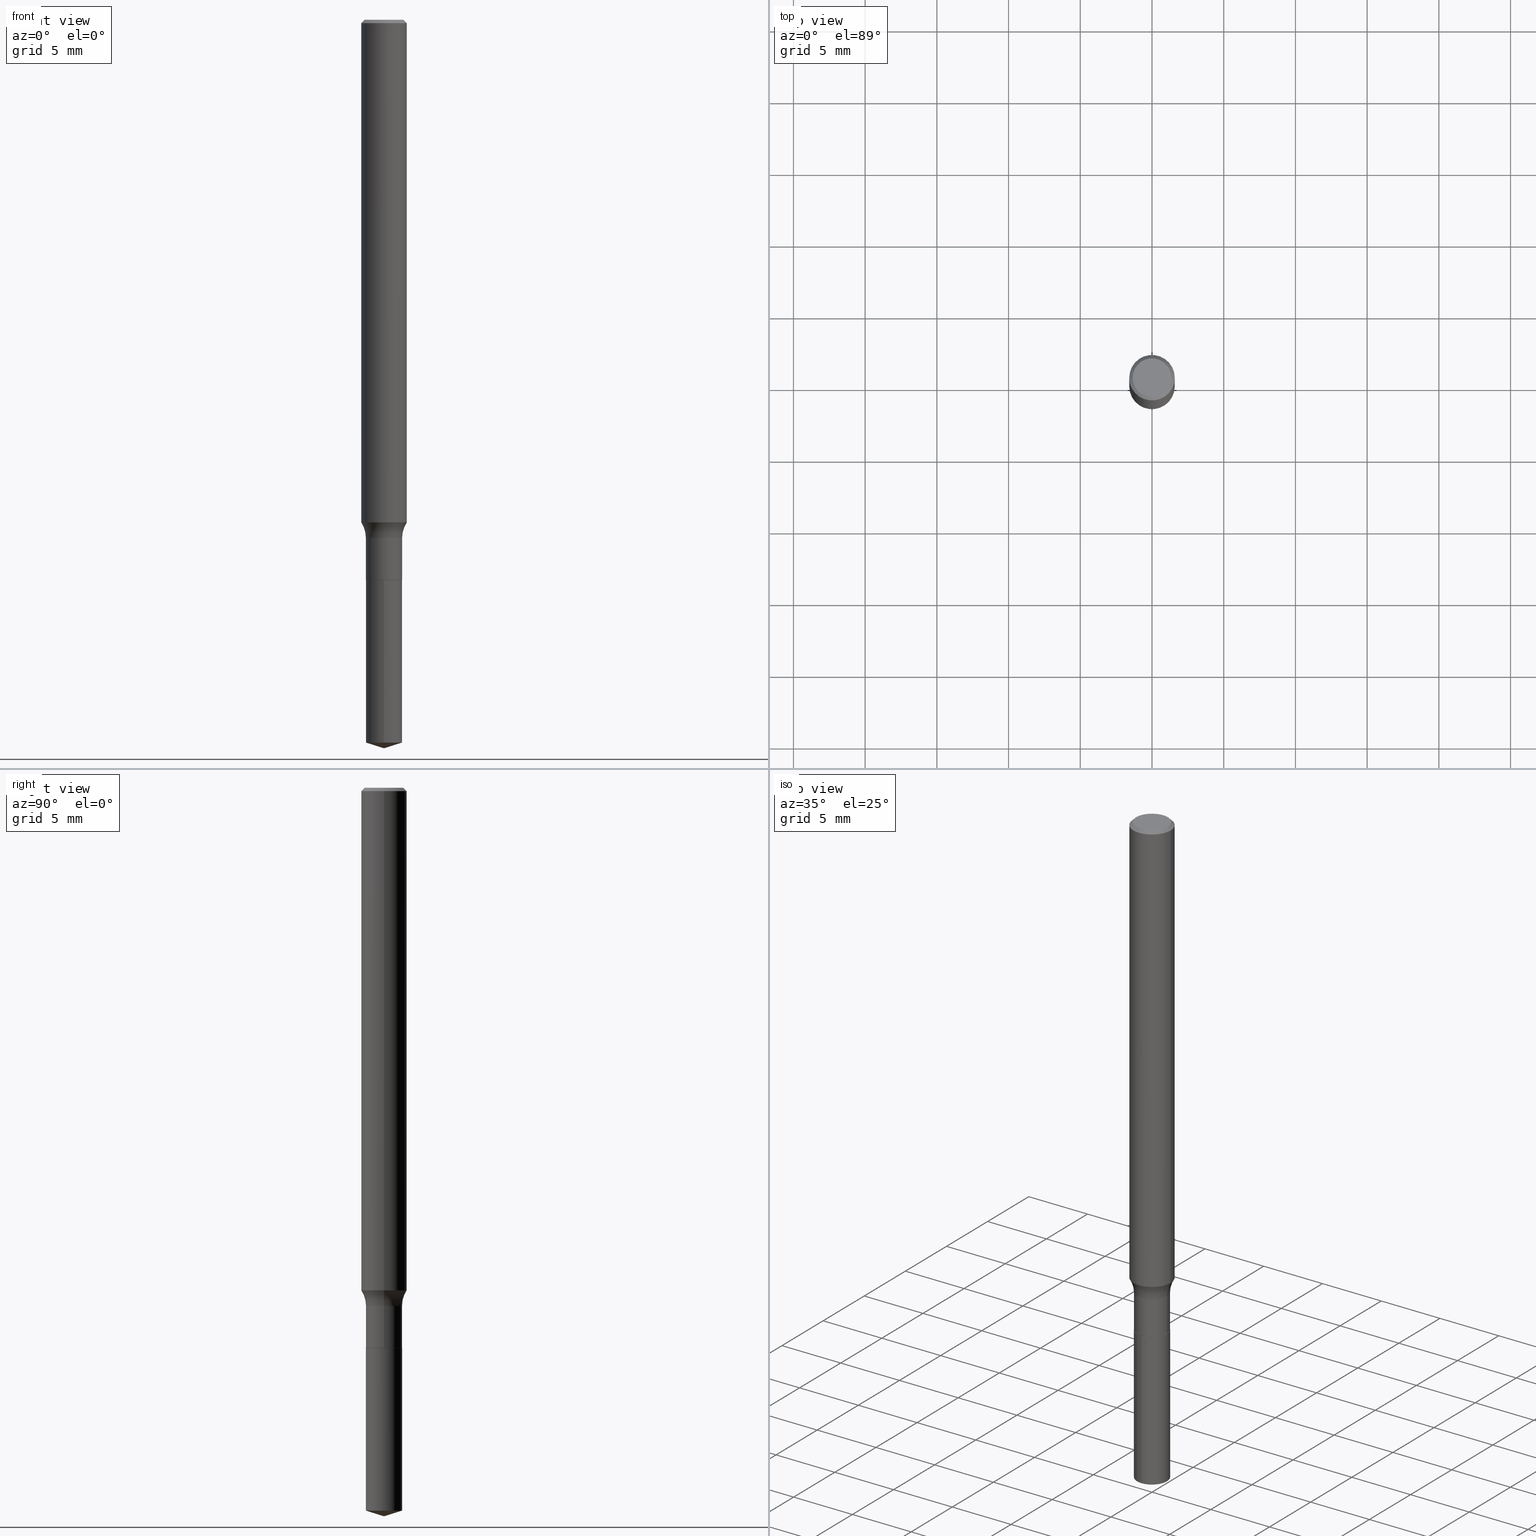
[diagram: canonical four-view strip — front | top / right | iso, engineering-drawing reading convention]
A machine part, canonical four-view strip (front | top / right | iso — engineering-drawing reading convention). The complete STEP part file that produces these views, byte-faithful:
ISO-10303-21;
HEADER;
FILE_DESCRIPTION (( 'STEP AP203' ),
    '1' );
FILE_NAME ('51753.STEP',
    '2024-04-19T13:14:13',
    ( '' ),
    ( '' ),
    'SwSTEP 2.0',
    'SolidWorks 2023',
    '' );
FILE_SCHEMA (( 'CONFIG_CONTROL_DESIGN' ));
ENDSEC;

DATA;
#1 = DIRECTION ( 'NONE',  ( -2.445468806185136597E-29, 3.491481338843145583E-15, 1.000000000000000000 ) ) ;
#2 = ORIENTED_EDGE ( 'NONE', *, *, #179, .F. ) ;
#3 = CALENDAR_DATE ( 2024, 19, 4 ) ;
#4 = EDGE_CURVE ( 'NONE', #243, #82, #340, .T. ) ;
#5 = DIRECTION ( 'NONE',  ( -2.445468806185136597E-29, 3.491481338843145583E-15, 1.000000000000000000 ) ) ;
#6 = EDGE_LOOP ( 'NONE', ( #15, #274, #393, #312 ) ) ;
#7 = VECTOR ( 'NONE', #301, 39.37007874015748143 ) ;
#8 = TOROIDAL_SURFACE ( 'NONE', #160, 0.1277500000000000024, 0.07799999999999999989 ) ;
#9 = CYLINDRICAL_SURFACE ( 'NONE', #212, 0.06250000000000008327 ) ;
#10 = ORIENTED_EDGE ( 'NONE', *, *, #202, .F. ) ;
#11 = CARTESIAN_POINT ( 'NONE',  ( 0.000000000000000000, 0.000000000000000000, 0.000000000000000000 ) ) ;
#12 = ORIENTED_EDGE ( 'NONE', *, *, #407, .F. ) ;
#13 = ORIENTED_EDGE ( 'NONE', *, *, #60, .F. ) ;
#14 = LOCAL_TIME ( 9, 14, 13.00000000000000000, #411 ) ;
#15 = ORIENTED_EDGE ( 'NONE', *, *, #380, .T. ) ;
#16 = ORIENTED_EDGE ( 'NONE', *, *, #444, .T. ) ;
#17 = FACE_OUTER_BOUND ( 'NONE', #88, .T. ) ;
#18 = DESIGN_CONTEXT ( 'detailed design', #124, 'design' ) ;
#19 = DIRECTION ( 'NONE',  ( 1.000000000000000000, -6.982962677686268288E-15, 0.000000000000000000 ) ) ;
#20 = AXIS2_PLACEMENT_3D ( 'NONE', #327, #139, #136 ) ;
#21 = CC_DESIGN_APPROVAL ( #95, ( #205 ) ) ;
#22 = ORIENTED_EDGE ( 'NONE', *, *, #396, .F. ) ;
#23 = DIRECTION ( 'NONE',  ( 1.000000000000000000, -6.982962677686266711E-15, 0.000000000000000000 ) ) ;
#24 = CARTESIAN_POINT ( 'NONE',  ( 3.534950110406982770E-16, 0.04974999999999305672, -1.984313885253270904 ) ) ;
#25 = PERSON_AND_ORGANIZATION ( #127, #352 ) ;
#26 = CARTESIAN_POINT ( 'NONE',  ( 0.1277500000000000024, -5.859054834712678258E-15, -1.422599999999999643 ) ) ;
#27 = PERSON_AND_ORGANIZATION_ROLE ( 'design_owner' ) ;
#28 = AXIS2_PLACEMENT_3D ( 'NONE', #172, #368, #360 ) ;
#29 = DIRECTION ( 'NONE',  ( 6.982962677686265922E-15, 1.000000000000000000, -3.494823742748583063E-15 ) ) ;
#30 = CIRCLE ( 'NONE', #374, 0.04975000000000002337 ) ;
#31 = CIRCLE ( 'NONE', #272, 0.04975000000000000255 ) ;
#32 = SECURITY_CLASSIFICATION_LEVEL ( 'unclassified' ) ;
#33 = LINE ( 'NONE', #145, #7 ) ;
#34 = PERSON_AND_ORGANIZATION ( #127, #352 ) ;
#35 = EDGE_CURVE ( 'NONE', #484, #93, #321, .T. ) ;
#36 = DIRECTION ( 'NONE',  ( 1.000000000000000000, -6.982962677686259611E-15, 0.000000000000000000 ) ) ;
#37 = DATE_AND_TIME ( #375, #474 ) ;
#38 = CARTESIAN_POINT ( 'NONE',  ( 0.000000000000000000, 0.000000000000000000, 0.000000000000000000 ) ) ;
#39 = AXIS2_PLACEMENT_3D ( 'NONE', #452, #339, #489 ) ;
#40 = COORDINATED_UNIVERSAL_TIME_OFFSET ( 5, 0, .BEHIND. ) ;
#41 = PLANE ( 'NONE',  #118 ) ;
#42 = ORIENTED_EDGE ( 'NONE', *, *, #285, .T. ) ;
#43 = EDGE_CURVE ( 'NONE', #47, #425, #228, .T. ) ;
#44 = DIRECTION ( 'NONE',  ( 6.776566513254251038E-15, 0.9537169507482278208, 0.3007057995042701215 ) ) ;
#45 = ORIENTED_EDGE ( 'NONE', *, *, #234, .F. ) ;
#46 = DIRECTION ( 'NONE',  ( -2.443134818012594295E-29, 3.494823742748583063E-15, 1.000000000000000000 ) ) ;
#47 = VERTEX_POINT ( 'NONE', #173 ) ;
#48 = AXIS2_PLACEMENT_3D ( 'NONE', #279, #244, #49 ) ;
#49 = DIRECTION ( 'NONE',  ( -6.982962677686266711E-15, -1.000000000000000000, 5.491151746058819933E-15 ) ) ;
#50 = ORIENTED_EDGE ( 'NONE', *, *, #234, .T. ) ;
#51 = EDGE_CURVE ( 'NONE', #129, #240, #477, .T. ) ;
#52 = VERTEX_POINT ( 'NONE', #214 ) ;
#53 = VERTEX_POINT ( 'NONE', #24 ) ;
#54 = ADVANCED_FACE ( 'NONE', ( #17 ), #72, .T. ) ;
#55 = AXIS2_PLACEMENT_3D ( 'NONE', #296, #107, #338 ) ;
#56 = VECTOR ( 'NONE', #223, 39.37007874015748143 ) ;
#57 = CARTESIAN_POINT ( 'NONE',  ( -0.06250000000000000000, 4.037025298037369491E-16, -0.009375000000000072511 ) ) ;
#58 = CARTESIAN_POINT ( 'NONE',  ( 0.000000000000000000, 0.000000000000000000, 0.000000000000000000 ) ) ;
#59 = DIRECTION ( 'NONE',  ( 0.7071067811865455743, -7.319954787623248157E-15, -0.7071067811865493491 ) ) ;
#60 = EDGE_CURVE ( 'NONE', #93, #240, #280, .T. ) ;
#61 = DIRECTION ( 'NONE',  ( -1.000000000000000000, 6.982962677686266711E-15, 0.000000000000000000 ) ) ;
#62 = CARTESIAN_POINT ( 'NONE',  ( 0.04975000000000002337, -5.712063470347386869E-15, -1.536500000000000421 ) ) ;
#63 = CLOSED_SHELL ( 'NONE', ( #429, #81, #283, #133, #164, #149, #108, #423, #337, #241, #320, #185 ) ) ;
#64 = AXIS2_PLACEMENT_3D ( 'NONE', #479, #151, #294 ) ;
#65 = EDGE_CURVE ( 'NONE', #282, #126, #181, .T. ) ;
#66 = DIRECTION ( 'NONE',  ( -2.443134818012594295E-29, 3.494823742748583063E-15, 1.000000000000000000 ) ) ;
#67 = APPLICATION_PROTOCOL_DEFINITION ( 'international standard', 'config_control_design', 1994, #73 ) ;
#68 = CARTESIAN_POINT ( 'NONE',  ( -9.129655318212976320E-28, 1.306069757242890747E-13, 37.37007874015748143 ) ) ;
#69 = DATE_AND_TIME ( #408, #413 ) ;
#70 = DIRECTION ( 'NONE',  ( -6.982962677686266711E-15, -1.000000000000000000, 3.491481338843145583E-15 ) ) ;
#71 = VECTOR ( 'NONE', #401, 39.37007874015748854 ) ;
#72 = CONICAL_SURFACE ( 'NONE', #259, 124.8659371009137118, 1.265363707695888573 ) ;
#73 = APPLICATION_CONTEXT ( 'configuration controlled 3d designs of mechanical parts and assemblies' ) ;
#74 = FACE_OUTER_BOUND ( 'NONE', #388, .T. ) ;
#75 = CIRCLE ( 'NONE', #434, 0.04975000000000000255 ) ;
#76 = VECTOR ( 'NONE', #367, 39.37007874015748143 ) ;
#77 = ADVANCED_FACE ( 'NONE', ( #362 ), #132, .T. ) ;
#78 = CYLINDRICAL_SURFACE ( 'NONE', #433, 0.04975000000000000949 ) ;
#79 = CARTESIAN_POINT ( 'NONE',  ( -0.04975000000000000255, -4.812326203844726355E-15, -1.422600000000000087 ) ) ;
#80 = DIRECTION ( 'NONE',  ( -6.982962677686266711E-15, -1.000000000000000000, 5.491151746058819933E-15 ) ) ;
#81 = ADVANCED_FACE ( 'NONE', ( #437 ), #265, .T. ) ;
#82 = VERTEX_POINT ( 'NONE', #219 ) ;
#83 = CARTESIAN_POINT ( 'NONE',  ( 3.758685555106554828E-29, -5.366406817801914963E-15, -1.536999999999999922 ) ) ;
#84 = ORIENTED_EDGE ( 'NONE', *, *, #369, .T. ) ;
#85 = DIRECTION ( 'NONE',  ( -2.445468806185136597E-29, 3.491481338843145583E-15, 1.000000000000000000 ) ) ;
#86 = ORIENTED_EDGE ( 'NONE', *, *, #410, .T. ) ;
#87 = DIRECTION ( 'NONE',  ( -1.000000000000000000, 7.105427357600997914E-15, 0.000000000000000000 ) ) ;
#88 = EDGE_LOOP ( 'NONE', ( #395, #92, #134 ) ) ;
#89 = AXIS2_PLACEMENT_3D ( 'NONE', #257, #404, #61 ) ;
#90 = AXIS2_PLACEMENT_3D ( 'NONE', #125, #128, #87 ) ;
#91 = EDGE_CURVE ( 'NONE', #243, #282, #178, .T. ) ;
#92 = ORIENTED_EDGE ( 'NONE', *, *, #248, .T. ) ;
#93 = VERTEX_POINT ( 'NONE', #409 ) ;
#94 = ORIENTED_EDGE ( 'NONE', *, *, #51, .T. ) ;
#95 = APPROVAL ( #199, 'UNSPECIFIED' ) ;
#96 = FACE_OUTER_BOUND ( 'NONE', #152, .T. ) ;
#97 = AXIS2_PLACEMENT_3D ( 'NONE', #392, #236, #197 ) ;
#98 = VERTEX_POINT ( 'NONE', #336 ) ;
#99 = CARTESIAN_POINT ( 'NONE',  ( 0.06250000000000008327, -4.364351673553922611E-16, 3.047610484872464074E-30 ) ) ;
#100 = CARTESIAN_POINT ( 'NONE',  ( -9.129655318212976320E-28, 1.306069757242890747E-13, 37.37007874015748143 ) ) ;
#101 = CARTESIAN_POINT ( 'NONE',  ( 3.758685555106554828E-29, -5.366406817801914963E-15, -1.536999999999999922 ) ) ;
#102 = DIRECTION ( 'NONE',  ( 1.000000000000000000, -6.982962677686266711E-15, 4.876176775795935793E-29 ) ) ;
#103 = DIRECTION ( 'NONE',  ( -2.445468806185136597E-29, 3.491481338843145583E-15, 1.000000000000000000 ) ) ;
#104 = APPROVAL_ROLE ( '' ) ;
#105 = DIRECTION ( 'NONE',  ( -2.445468806185136597E-29, 3.491481338843145583E-15, 1.000000000000000000 ) ) ;
#106 = LENGTH_MEASURE_WITH_UNIT ( LENGTH_MEASURE( 0.02539999999999999897 ), #174 );
#107 = DIRECTION ( 'NONE',  ( -2.443134818012594295E-29, 3.494823742748583063E-15, 1.000000000000000000 ) ) ;
#108 = ADVANCED_FACE ( 'NONE', ( #416 ), #186, .F. ) ;
#109 = MANIFOLD_SOLID_BREP ( 'Body-Move/Copy2[1]', #220 ) ;
#110 = AXIS2_PLACEMENT_3D ( 'NONE', #26, #70, #195 ) ;
#111 = DIRECTION ( 'NONE',  ( 1.000000000000000000, -6.982962677686268288E-15, 4.883557194083114022E-29 ) ) ;
#112 = CIRCLE ( 'NONE', #459, 0.06250000000000000000 ) ;
#113 = CARTESIAN_POINT ( 'NONE',  ( -0.06250000000000000000, -1.981160345435149449E-15, -0.009375000000000072511 ) ) ;
#114 = ORIENTED_EDGE ( 'NONE', *, *, #317, .T. ) ;
#115 = PERSON_AND_ORGANIZATION_ROLE ( 'classification_officer' ) ;
#116 = LINE ( 'NONE', #166, #204 ) ;
#117 = CARTESIAN_POINT ( 'NONE',  ( -3.474023932148541639E-16, -0.04975000000000537326, -1.536999999999999700 ) ) ;
#118 = AXIS2_PLACEMENT_3D ( 'NONE', #83, #417, #122 ) ;
#119 = ORIENTED_EDGE ( 'NONE', *, *, #35, .T. ) ;
#120 = CC_DESIGN_SECURITY_CLASSIFICATION ( #205, ( #177 ) ) ;
#121 = DATE_AND_TIME ( #456, #450 ) ;
#122 = DIRECTION ( 'NONE',  ( 1.000000000000000000, -6.982962677686265922E-15, 4.876176775795935793E-29 ) ) ;
#123 = ORIENTED_EDGE ( 'NONE', *, *, #490, .T. ) ;
#124 = APPLICATION_CONTEXT ( 'configuration controlled 3d designs of mechanical parts and assemblies' ) ;
#125 = CARTESIAN_POINT ( 'NONE',  ( -0.1277500000000000024, -4.059263007704729389E-15, -1.422599999999999643 ) ) ;
#126 = VERTEX_POINT ( 'NONE', #79 ) ;
#127 = PERSON ( 'UNSPECIFIED', 'UNSPECIFIED', 'UNSPECIFIED', ('UNSPECIFIED'), ('UNSPECIFIED'), ('UNSPECIFIED') ) ;
#128 = DIRECTION ( 'NONE',  ( 7.105427357601001859E-15, 1.000000000000000000, -3.491481338843145583E-15 ) ) ;
#129 = VERTEX_POINT ( 'NONE', #412 ) ;
#130 = VECTOR ( 'NONE', #59, 39.37007874015748854 ) ;
#131 = VECTOR ( 'NONE', #298, 39.37007874015748143 ) ;
#132 = CYLINDRICAL_SURFACE ( 'NONE', #441, 0.04975000000000000255 ) ;
#133 = ADVANCED_FACE ( 'NONE', ( #74 ), #8, .F. ) ;
#134 = ORIENTED_EDGE ( 'NONE', *, *, #410, .F. ) ;
#135 = UNCERTAINTY_MEASURE_WITH_UNIT (LENGTH_MEASURE( 1.000000000000000082E-05 ), #436, 'distance_accuracy_value', 'NONE');
#136 = DIRECTION ( 'NONE',  ( 1.000000000000000000, -6.982962677686266711E-15, 0.000000000000000000 ) ) ;
#137 = VECTOR ( 'NONE', #255, 39.37007874015748143 ) ;
#138 = DIRECTION ( 'NONE',  ( 0.000000000000000000, 0.000000000000000000, 1.000000000000000000 ) ) ;
#139 = DIRECTION ( 'NONE',  ( -2.445468806185136597E-29, 3.491481338843145583E-15, 1.000000000000000000 ) ) ;
#140 = DIRECTION ( 'NONE',  ( -2.445468806185136597E-29, 3.491481338843145583E-15, 1.000000000000000000 ) ) ;
#141 = CARTESIAN_POINT ( 'NONE',  ( -0.04925000000000000211, -5.016464520440065508E-15, -1.536999999999999922 ) ) ;
#142 = ADVANCED_FACE ( 'NONE', ( #235 ), #252, .T. ) ;
#143 = CARTESIAN_POINT ( 'NONE',  ( 0.000000000000000000, 0.000000000000000000, 0.000000000000000000 ) ) ;
#144 = CIRCLE ( 'NONE', #389, 0.05312499999999999861 ) ;
#145 = CARTESIAN_POINT ( 'NONE',  ( 0.04925000000000000211, -5.710317729677963788E-15, -1.536999999999999922 ) ) ;
#146 = CARTESIAN_POINT ( 'NONE',  ( 0.06250000000000016653, -5.254201640374165172E-15, -1.379863159920274418 ) ) ;
#147 = DIRECTION ( 'NONE',  ( 1.000000000000000000, -6.982962677686266711E-15, 4.876176775795935793E-29 ) ) ;
#148 = DIRECTION ( 'NONE',  ( -2.445468806185136597E-29, 3.491481338843145583E-15, 1.000000000000000000 ) ) ;
#149 = ADVANCED_FACE ( 'NONE', ( #414 ), #78, .T. ) ;
#150 = VECTOR ( 'NONE', #284, 39.37007874015748143 ) ;
#151 = DIRECTION ( 'NONE',  ( -2.445468806185136597E-29, 3.491481338843145583E-15, 1.000000000000000000 ) ) ;
#152 = EDGE_LOOP ( 'NONE', ( #432, #198, #249, #359 ) ) ;
#153 = EDGE_CURVE ( 'NONE', #53, #52, #232, .T. ) ;
#154 = APPROVAL_ROLE ( '' ) ;
#155 = DIRECTION ( 'NONE',  ( 1.000000000000000000, -6.982962677686266711E-15, 4.874146000987428094E-29 ) ) ;
#156 = CARTESIAN_POINT ( 'NONE',  ( 4.851533682749310383E-29, -6.929690004446159689E-15, -1.984313885253270460 ) ) ;
#157 = ORIENTED_EDGE ( 'NONE', *, *, #91, .F. ) ;
#158 = SHAPE_DEFINITION_REPRESENTATION ( #196, #226 ) ;
#159 = CARTESIAN_POINT ( 'NONE',  ( 3.758685555106554828E-29, -5.366406817801914963E-15, -1.536999999999999922 ) ) ;
#160 = AXIS2_PLACEMENT_3D ( 'NONE', #261, #440, #445 ) ;
#161 = ORIENTED_EDGE ( 'NONE', *, *, #390, .T. ) ;
#162 = AXIS2_PLACEMENT_3D ( 'NONE', #156, #307, #465 ) ;
#163 = LINE ( 'NONE', #313, #246 ) ;
#164 = ADVANCED_FACE ( 'NONE', ( #332 ), #447, .T. ) ;
#165 = ORIENTED_EDGE ( 'NONE', *, *, #306, .T. ) ;
#166 = CARTESIAN_POINT ( 'NONE',  ( -3.474023932148541639E-16, -0.04975000000000537326, -1.536999999999999700 ) ) ;
#167 = ORIENTED_EDGE ( 'NONE', *, *, #218, .T. ) ;
#168 = EDGE_CURVE ( 'NONE', #425, #258, #449, .T. ) ;
#169 = EDGE_LOOP ( 'NONE', ( #12, #10, #381, #16 ) ) ;
#170 = CC_DESIGN_APPROVAL ( #403, ( #438 ) ) ;
#171 = CC_DESIGN_PERSON_AND_ORGANIZATION_ASSIGNMENT ( #25, #27, ( #455 ) ) ;
#172 = CARTESIAN_POINT ( 'NONE',  ( 3.758685555106554828E-29, -5.366406817801914963E-15, -1.536999999999999922 ) ) ;
#173 = CARTESIAN_POINT ( 'NONE',  ( -0.06250000000000016653, -4.373677263168709308E-15, -1.379863159920274418 ) ) ;
#174 =( LENGTH_UNIT ( ) NAMED_UNIT ( * ) SI_UNIT ( $, .METRE. ) );
#175 = DIRECTION ( 'NONE',  ( -6.982962677686266711E-15, -1.000000000000000000, 5.491151746058819933E-15 ) ) ;
#176 = CIRCLE ( 'NONE', #333, 0.04975000000000000255 ) ;
#177 = PRODUCT_DEFINITION_FORMATION_WITH_SPECIFIED_SOURCE ( 'ANY', '', #455, .NOT_KNOWN. ) ;
#178 = LINE ( 'NONE', #141, #150 ) ;
#179 = EDGE_CURVE ( 'NONE', #282, #435, #289, .T. ) ;
#180 = CARTESIAN_POINT ( 'NONE',  ( 0.000000000000000000, 0.000000000000000000, 0.000000000000000000 ) ) ;
#181 = LINE ( 'NONE', #439, #137 ) ;
#182 = CARTESIAN_POINT ( 'NONE',  ( 3.758685555106554828E-29, -5.366406817801914963E-15, -1.536999999999999922 ) ) ;
#183 = DIRECTION ( 'NONE',  ( -2.445468806185136597E-29, 3.491481338843145583E-15, 1.000000000000000000 ) ) ;
#184 = CALENDAR_DATE ( 2024, 19, 4 ) ;
#185 = ADVANCED_FACE ( 'NONE', ( #373 ), #324, .T. ) ;
#186 = TOROIDAL_SURFACE ( 'NONE', #405, 0.1277500000000000024, 0.07799999999999999989 ) ;
#187 = CARTESIAN_POINT ( 'NONE',  ( 3.534950110406874301E-16, 0.04974999999999463185, -1.537000000000000366 ) ) ;
#188 = DATE_TIME_ROLE ( 'classification_date' ) ;
#189 = DIRECTION ( 'NONE',  ( -6.982962677686266711E-15, -1.000000000000000000, 3.500519750498742297E-15 ) ) ;
#190 = APPROVAL_DATE_TIME ( #121, #481 ) ;
#191 = PLANE ( 'NONE',  #39 ) ;
#192 = PERSON_AND_ORGANIZATION ( #127, #352 ) ;
#193 = AXIS2_PLACEMENT_3D ( 'NONE', #397, #216, #470 ) ;
#194 = CIRCLE ( 'NONE', #55, 0.04975000000000000255 ) ;
#195 = DIRECTION ( 'NONE',  ( 1.000000000000000000, -6.982962677686270655E-15, 0.000000000000000000 ) ) ;
#196 = PRODUCT_DEFINITION_SHAPE ( 'NONE', 'NONE',  #438 ) ;
#197 = DIRECTION ( 'NONE',  ( -1.000000000000000000, 6.982962677686266711E-15, 0.000000000000000000 ) ) ;
#198 = ORIENTED_EDGE ( 'NONE', *, *, #43, .T. ) ;
#199 = APPROVAL_STATUS ( 'not_yet_approved' ) ;
#200 = CARTESIAN_POINT ( 'NONE',  ( -3.474023932148430705E-16, -0.04975000000000692063, -1.984313885253270238 ) ) ;
#201 = ORIENTED_EDGE ( 'NONE', *, *, #471, .T. ) ;
#202 = EDGE_CURVE ( 'NONE', #425, #47, #365, .T. ) ;
#203 = FACE_OUTER_BOUND ( 'NONE', #269, .T. ) ;
#204 = VECTOR ( 'NONE', #268, 39.37007874015748143 ) ;
#205 = SECURITY_CLASSIFICATION ( '', '', #32 ) ;
#206 = ORIENTED_EDGE ( 'NONE', *, *, #60, .T. ) ;
#207 = CARTESIAN_POINT ( 'NONE',  ( 4.886269636025189151E-29, -6.989647485497166126E-15, -2.000000000000000000 ) ) ;
#208 = ORIENTED_EDGE ( 'NONE', *, *, #65, .T. ) ;
#209 = ORIENTED_EDGE ( 'NONE', *, *, #369, .F. ) ;
#210 = ADVANCED_FACE ( 'NONE', ( #227 ), #486, .F. ) ;
#211 = ORIENTED_EDGE ( 'NONE', *, *, #168, .F. ) ;
#212 = AXIS2_PLACEMENT_3D ( 'NONE', #11, #1, #457 ) ;
#213 = APPROVAL_PERSON_ORGANIZATION ( #485, #403, #104 ) ;
#214 = CARTESIAN_POINT ( 'NONE',  ( 3.534950110406984742E-16, 0.04974999999999463185, -1.537000000000000366 ) ) ;
#215 = DATE_TIME_ROLE ( 'creation_date' ) ;
#216 = DIRECTION ( 'NONE',  ( -2.445468806185136597E-29, 3.491481338843145583E-15, 1.000000000000000000 ) ) ;
#217 = LINE ( 'NONE', #256, #76 ) ;
#218 = EDGE_CURVE ( 'NONE', #82, #435, #33, .T. ) ;
#219 = CARTESIAN_POINT ( 'NONE',  ( 0.04925000000000000211, -5.710317729677963788E-15, -1.536999999999999922 ) ) ;
#220 = CLOSED_SHELL ( 'NONE', ( #77, #142, #54, #273, #210 ) ) ;
#221 = CIRCLE ( 'NONE', #48, 0.04975000000000000255 ) ;
#222 = ORIENTED_EDGE ( 'NONE', *, *, #51, .F. ) ;
#223 = DIRECTION ( 'NONE',  ( -2.445468806185136877E-29, 3.491481338843145188E-15, 1.000000000000000000 ) ) ;
#224 = CC_DESIGN_PERSON_AND_ORGANIZATION_ASSIGNMENT ( #299, #341, ( #177 ) ) ;
#225 = PERSON_AND_ORGANIZATION ( #127, #352 ) ;
#226 = ADVANCED_BREP_SHAPE_REPRESENTATION ( '51753', ( #109, #427, #342 ), #391 ) ;
#227 = FACE_OUTER_BOUND ( 'NONE', #237, .T. ) ;
#228 = CIRCLE ( 'NONE', #193, 0.06250000000000016653 ) ;
#229 = AXIS2_PLACEMENT_3D ( 'NONE', #406, #103, #263 ) ;
#230 = VECTOR ( 'NONE', #44, 39.37007874015748854 ) ;
#231 = DIRECTION ( 'NONE',  ( -2.445468806185136597E-29, 3.491481338843145583E-15, 1.000000000000000000 ) ) ;
#232 = LINE ( 'NONE', #187, #131 ) ;
#233 = PERSON_AND_ORGANIZATION ( #127, #352 ) ;
#234 = EDGE_CURVE ( 'NONE', #52, #292, #194, .T. ) ;
#235 = FACE_OUTER_BOUND ( 'NONE', #466, .T. ) ;
#236 = DIRECTION ( 'NONE',  ( 2.445468806185136597E-29, -3.491481338843145583E-15, -1.000000000000000000 ) ) ;
#237 = EDGE_LOOP ( 'NONE', ( #114, #50 ) ) ;
#238 = EDGE_CURVE ( 'NONE', #484, #129, #144, .T. ) ;
#239 = CARTESIAN_POINT ( 'NONE',  ( 3.478923923678975324E-29, -4.966981352638258380E-15, -1.422600000000000087 ) ) ;
#240 = VERTEX_POINT ( 'NONE', #113 ) ;
#241 = ADVANCED_FACE ( 'NONE', ( #448 ), #191, .F. ) ;
#242 = CARTESIAN_POINT ( 'NONE',  ( 3.758685555106554828E-29, -5.366406817801914963E-15, -1.536999999999999922 ) ) ;
#243 = VERTEX_POINT ( 'NONE', #277 ) ;
#244 = DIRECTION ( 'NONE',  ( -2.443134818012594295E-29, 3.494823742748583063E-15, 1.000000000000000000 ) ) ;
#245 = AXIS2_PLACEMENT_3D ( 'NONE', #271, #85, #155 ) ;
#246 = VECTOR ( 'NONE', #463, 39.37007874015748143 ) ;
#247 = ORIENTED_EDGE ( 'NONE', *, *, #238, .T. ) ;
#248 = EDGE_CURVE ( 'NONE', #98, #394, #383, .T. ) ;
#249 = ORIENTED_EDGE ( 'NONE', *, *, #461, .T. ) ;
#250 = EDGE_LOOP ( 'NONE', ( #291, #208, #323, #22 ) ) ;
#251 = ORIENTED_EDGE ( 'NONE', *, *, #306, .F. ) ;
#252 = CONICAL_SURFACE ( 'NONE', #426, 124.8659371009137118, 1.265363707695888573 ) ;
#253 = APPROVAL_PERSON_ORGANIZATION ( #361, #481, #451 ) ;
#254 = CARTESIAN_POINT ( 'NONE',  ( -0.04975000000000002337, -4.812326203844726355E-15, -1.536500000000000421 ) ) ;
#255 = DIRECTION ( 'NONE',  ( -2.445468806185136877E-29, 3.491481338843145188E-15, 1.000000000000000000 ) ) ;
#256 = CARTESIAN_POINT ( 'NONE',  ( -0.06250000000000008327, 4.440892098500632078E-16, -3.074334431409319967E-30 ) ) ;
#257 = CARTESIAN_POINT ( 'NONE',  ( 2.292627005798583251E-31, -3.273263755165474498E-17, -0.009375000000000072511 ) ) ;
#258 = VERTEX_POINT ( 'NONE', #428 ) ;
#259 = AXIS2_PLACEMENT_3D ( 'NONE', #100, #322, #472 ) ;
#260 = DIRECTION ( 'NONE',  ( 1.000000000000000000, -6.982962677686259611E-15, 0.000000000000000000 ) ) ;
#261 = CARTESIAN_POINT ( 'NONE',  ( 3.478923923678974203E-29, -4.966981352638257591E-15, -1.422599999999999643 ) ) ;
#262 = COORDINATED_UNIVERSAL_TIME_OFFSET ( 5, 0, .BEHIND. ) ;
#263 = DIRECTION ( 'NONE',  ( 1.000000000000000000, -6.982962677686275388E-15, 0.000000000000000000 ) ) ;
#264 = CARTESIAN_POINT ( 'NONE',  ( 3.758685555106554828E-29, -5.366406817801914963E-15, -1.536999999999999922 ) ) ;
#265 = CONICAL_SURFACE ( 'NONE', #89, 0.06250000000000000000, 0.7853981633974456145 ) ;
#266 = DIRECTION ( 'NONE',  ( 2.443134818012594015E-29, -3.494823742748583063E-15, -1.000000000000000000 ) ) ;
#267 = CARTESIAN_POINT ( 'NONE',  ( 3.478923923678974203E-29, -4.966981352638257591E-15, -1.422599999999999643 ) ) ;
#268 = DIRECTION ( 'NONE',  ( -2.443134818012594295E-29, 3.494823742748583063E-15, 1.000000000000000000 ) ) ;
#269 = EDGE_LOOP ( 'NONE', ( #319, #276 ) ) ;
#270 = CIRCLE ( 'NONE', #245, 0.05312499999999999861 ) ;
#271 = CARTESIAN_POINT ( 'NONE',  ( 4.773019151292986598E-46, -6.814606366898298634E-32, -1.951780836141093396E-17 ) ) ;
#272 = AXIS2_PLACEMENT_3D ( 'NONE', #297, #140, #260 ) ;
#273 = ADVANCED_FACE ( 'NONE', ( #419 ), #311, .T. ) ;
#274 = ORIENTED_EDGE ( 'NONE', *, *, #153, .T. ) ;
#275 = CARTESIAN_POINT ( 'NONE',  ( 3.758685555106554828E-29, -5.366406817801914963E-15, -1.536999999999999922 ) ) ;
#276 = ORIENTED_EDGE ( 'NONE', *, *, #4, .F. ) ;
#277 = CARTESIAN_POINT ( 'NONE',  ( -0.04925000000000000211, -5.013815293265955884E-15, -1.536999999999999922 ) ) ;
#278 = EDGE_LOOP ( 'NONE', ( #157, #353, #167, #2 ) ) ;
#279 = CARTESIAN_POINT ( 'NONE',  ( 4.851533682749310383E-29, -6.929690004446159689E-15, -1.984313885253270460 ) ) ;
#280 = CIRCLE ( 'NONE', #20, 0.06250000000000000000 ) ;
#281 = AXIS2_PLACEMENT_3D ( 'NONE', #58, #343, #102 ) ;
#282 = VERTEX_POINT ( 'NONE', #254 ) ;
#283 = ADVANCED_FACE ( 'NONE', ( #460 ), #9, .T. ) ;
#284 = DIRECTION ( 'NONE',  ( -0.7071067811868251285, 7.493145998871357591E-15, 0.7071067811862699060 ) ) ;
#285 = EDGE_CURVE ( 'NONE', #394, #292, #116, .T. ) ;
#286 = EDGE_LOOP ( 'NONE', ( #420, #201, #13, #386 ) ) ;
#287 = EDGE_LOOP ( 'NONE', ( #165, #247 ) ) ;
#288 = VECTOR ( 'NONE', #354, 39.37007874015748854 ) ;
#289 = CIRCLE ( 'NONE', #229, 0.04975000000000002337 ) ;
#290 = AXIS2_PLACEMENT_3D ( 'NONE', #182, #402, #19 ) ;
#291 = ORIENTED_EDGE ( 'NONE', *, *, #355, .T. ) ;
#292 = VERTEX_POINT ( 'NONE', #117 ) ;
#293 = EDGE_CURVE ( 'NONE', #82, #243, #482, .T. ) ;
#294 = DIRECTION ( 'NONE',  ( 1.000000000000000000, -6.982962677686268288E-15, 0.000000000000000000 ) ) ;
#295 = CARTESIAN_POINT ( 'NONE',  ( 2.292627005798583251E-31, -3.273263755165474498E-17, -0.009375000000000072511 ) ) ;
#296 = CARTESIAN_POINT ( 'NONE',  ( 3.758685555106554828E-29, -5.366406817801914963E-15, -1.536999999999999922 ) ) ;
#297 = CARTESIAN_POINT ( 'NONE',  ( 3.478923923678975324E-29, -4.966981352638258380E-15, -1.422600000000000087 ) ) ;
#298 = DIRECTION ( 'NONE',  ( -2.443134818012594295E-29, 3.494823742748583063E-15, 1.000000000000000000 ) ) ;
#299 = PERSON_AND_ORGANIZATION ( #127, #352 ) ;
#300 = DIRECTION ( 'NONE',  ( 1.000000000000000000, -6.982962677686266711E-15, 4.874146000987428094E-29 ) ) ;
#301 = DIRECTION ( 'NONE',  ( 0.7071067811868251285, -2.468850131085164802E-15, 0.7071067811862699060 ) ) ;
#302 = ORIENTED_EDGE ( 'NONE', *, *, #91, .T. ) ;
#303 = COORDINATED_UNIVERSAL_TIME_OFFSET ( 5, 0, .BEHIND. ) ;
#304 = DIRECTION ( 'NONE',  ( -6.982962677686266711E-15, -1.000000000000000000, 5.491151746058819933E-15 ) ) ;
#305 = DIMENSIONAL_EXPONENTS ( 1.000000000000000000, 0.000000000000000000, 0.000000000000000000, 0.000000000000000000, 0.000000000000000000, 0.000000000000000000, 0.000000000000000000 ) ;
#306 = EDGE_CURVE ( 'NONE', #129, #484, #270, .T. ) ;
#307 = DIRECTION ( 'NONE',  ( -2.443134818012594295E-29, 3.494823742748583063E-15, 1.000000000000000000 ) ) ;
#308 = ORIENTED_EDGE ( 'NONE', *, *, #396, .T. ) ;
#309 = COORDINATED_UNIVERSAL_TIME_OFFSET ( 5, 0, .BEHIND. ) ;
#310 = CONICAL_SURFACE ( 'NONE', #97, 0.06250000000000000000, 0.7853981633974456145 ) ;
#311 = CYLINDRICAL_SURFACE ( 'NONE', #468, 0.04975000000000000255 ) ;
#312 = ORIENTED_EDGE ( 'NONE', *, *, #285, .F. ) ;
#313 = CARTESIAN_POINT ( 'NONE',  ( 0.04975000000000000949, -3.474023932148918320E-16, 2.425897945958478645E-30 ) ) ;
#314 = ORIENTED_EDGE ( 'NONE', *, *, #65, .F. ) ;
#315 = LINE ( 'NONE', #424, #230 ) ;
#316 = ORIENTED_EDGE ( 'NONE', *, *, #380, .F. ) ;
#317 = EDGE_CURVE ( 'NONE', #292, #52, #176, .T. ) ;
#318 = AXIS2_PLACEMENT_3D ( 'NONE', #377, #183, #36 ) ;
#319 = ORIENTED_EDGE ( 'NONE', *, *, #293, .F. ) ;
#320 = ADVANCED_FACE ( 'NONE', ( #203 ), #41, .F. ) ;
#321 = LINE ( 'NONE', #330, #130 ) ;
#322 = DIRECTION ( 'NONE',  ( -2.443134818012594295E-29, 3.494823742748583063E-15, 1.000000000000000000 ) ) ;
#323 = ORIENTED_EDGE ( 'NONE', *, *, #444, .F. ) ;
#324 = CONICAL_SURFACE ( 'NONE', #64, 0.04925000000000000211, 0.7853981633978409649 ) ;
#325 = CIRCLE ( 'NONE', #90, 0.07799999999999999989 ) ;
#326 = FACE_OUTER_BOUND ( 'NONE', #464, .T. ) ;
#327 = CARTESIAN_POINT ( 'NONE',  ( 2.292627005798583251E-31, -3.273263755165474498E-17, -0.009375000000000072511 ) ) ;
#328 = CC_DESIGN_DATE_AND_TIME_ASSIGNMENT ( #37, #188, ( #205 ) ) ;
#329 = DIRECTION ( 'NONE',  ( 1.000000000000000000, 0.000000000000000000, 0.000000000000000000 ) ) ;
#330 = CARTESIAN_POINT ( 'NONE',  ( 0.06250000000000000000, -4.615137624123754923E-16, -0.009375000000000072511 ) ) ;
#331 = LINE ( 'NONE', #99, #56 ) ;
#332 = FACE_OUTER_BOUND ( 'NONE', #250, .T. ) ;
#333 = AXIS2_PLACEMENT_3D ( 'NONE', #159, #492, #80 ) ;
#334 = DATE_AND_TIME ( #184, #14 ) ;
#335 = LOCAL_TIME ( 9, 14, 13.00000000000000000, #309 ) ;
#336 = CARTESIAN_POINT ( 'NONE',  ( 4.886269636025188590E-29, -6.989647485497166126E-15, -2.000000000000000000 ) ) ;
#337 = ADVANCED_FACE ( 'NONE', ( #351 ), #310, .T. ) ;
#338 = DIRECTION ( 'NONE',  ( -6.982962677686266711E-15, -1.000000000000000000, 5.491151746058819933E-15 ) ) ;
#339 = DIRECTION ( 'NONE',  ( 2.438088387897960049E-29, -3.491481338843145188E-15, -1.000000000000000000 ) ) ;
#340 = CIRCLE ( 'NONE', #28, 0.04925000000000000211 ) ;
#341 = PERSON_AND_ORGANIZATION_ROLE ( 'creator' ) ;
#342 = AXIS2_PLACEMENT_3D ( 'NONE', #180, #138, #329 ) ;
#343 = DIRECTION ( 'NONE',  ( -2.445468806185136597E-29, 3.491481338843145583E-15, 1.000000000000000000 ) ) ;
#344 = CC_DESIGN_DATE_AND_TIME_ASSIGNMENT ( #334, #215, ( #438 ) ) ;
#345 = DIRECTION ( 'NONE',  ( -2.445468806185136597E-29, 3.491481338843145583E-15, 1.000000000000000000 ) ) ;
#346 = EDGE_LOOP ( 'NONE', ( #364, #86, #42, #45 ) ) ;
#347 = APPROVAL_STATUS ( 'not_yet_approved' ) ;
#348 = CARTESIAN_POINT ( 'NONE',  ( 3.757462820703463708E-29, -5.364661077132495037E-15, -1.536500000000000421 ) ) ;
#349 = ORIENTED_EDGE ( 'NONE', *, *, #238, .F. ) ;
#350 = CONICAL_SURFACE ( 'NONE', #290, 0.04925000000000000211, 0.7853981633978409649 ) ;
#351 = FACE_OUTER_BOUND ( 'NONE', #399, .T. ) ;
#352 = ORGANIZATION ( 'UNSPECIFIED', 'UNSPECIFIED', '' ) ;
#353 = ORIENTED_EDGE ( 'NONE', *, *, #4, .T. ) ;
#354 = DIRECTION ( 'NONE',  ( -6.659769872151624989E-15, -0.9537169507482257114, 0.3007057995042767273 ) ) ;
#355 = EDGE_CURVE ( 'NONE', #435, #282, #30, .T. ) ;
#356 = ORIENTED_EDGE ( 'NONE', *, *, #218, .F. ) ;
#357 = ORIENTED_EDGE ( 'NONE', *, *, #179, .T. ) ;
#358 = AXIS2_PLACEMENT_3D ( 'NONE', #264, #266, #29 ) ;
#359 = ORIENTED_EDGE ( 'NONE', *, *, #490, .F. ) ;
#360 = DIRECTION ( 'NONE',  ( 1.000000000000000000, -6.982962677686268288E-15, 0.000000000000000000 ) ) ;
#361 = PERSON_AND_ORGANIZATION ( #127, #352 ) ;
#362 = FACE_OUTER_BOUND ( 'NONE', #6, .T. ) ;
#363 = APPROVAL_DATE_TIME ( #69, #403 ) ;
#364 = ORIENTED_EDGE ( 'NONE', *, *, #153, .F. ) ;
#365 = CIRCLE ( 'NONE', #318, 0.06250000000000016653 ) ;
#366 = APPROVAL_PERSON_ORGANIZATION ( #233, #95, #154 ) ;
#367 = DIRECTION ( 'NONE',  ( -2.445468806185136877E-29, 3.491481338843145188E-15, 1.000000000000000000 ) ) ;
#368 = DIRECTION ( 'NONE',  ( -2.445468806185136597E-29, 3.491481338843145583E-15, 1.000000000000000000 ) ) ;
#369 = EDGE_CURVE ( 'NONE', #126, #258, #75, .T. ) ;
#370 = MECHANICAL_CONTEXT ( 'NONE', #73, 'mechanical' ) ;
#371 = DIRECTION ( 'NONE',  ( 1.000000000000000000, -6.982962677686266711E-15, 4.876176775795935793E-29 ) ) ;
#372 = PERSON_AND_ORGANIZATION_ROLE ( 'creator' ) ;
#373 = FACE_OUTER_BOUND ( 'NONE', #278, .T. ) ;
#374 = AXIS2_PLACEMENT_3D ( 'NONE', #348, #345, #454 ) ;
#375 = CALENDAR_DATE ( 2024, 19, 4 ) ;
#376 = DIRECTION ( 'NONE',  ( -2.445468806185136597E-29, 3.491481338843145583E-15, 1.000000000000000000 ) ) ;
#377 = CARTESIAN_POINT ( 'NONE',  ( 3.374412314389083548E-29, -4.817766473018772713E-15, -1.379863159920274418 ) ) ;
#378 = PERSON_AND_ORGANIZATION_ROLE ( 'design_supplier' ) ;
#379 = DIRECTION ( 'NONE',  ( -2.443134818012594295E-29, 3.494823742748583063E-15, 1.000000000000000000 ) ) ;
#380 = EDGE_CURVE ( 'NONE', #394, #53, #483, .T. ) ;
#381 = ORIENTED_EDGE ( 'NONE', *, *, #168, .T. ) ;
#382 = AXIS2_PLACEMENT_3D ( 'NONE', #275, #421, #387 ) ;
#383 = LINE ( 'NONE', #207, #288 ) ;
#384 = ORIENTED_EDGE ( 'NONE', *, *, #248, .F. ) ;
#385 = DIRECTION ( 'NONE',  ( 1.000000000000000000, -6.982962677686259611E-15, 0.000000000000000000 ) ) ;
#386 = ORIENTED_EDGE ( 'NONE', *, *, #461, .F. ) ;
#387 = DIRECTION ( 'NONE',  ( 1.000000000000000000, -6.982962677686268288E-15, 0.000000000000000000 ) ) ;
#388 = EDGE_LOOP ( 'NONE', ( #422, #418, #84, #211 ) ) ;
#389 = AXIS2_PLACEMENT_3D ( 'NONE', #488, #148, #300 ) ;
#390 = EDGE_CURVE ( 'NONE', #98, #53, #315, .T. ) ;
#391 =( GEOMETRIC_REPRESENTATION_CONTEXT ( 3 ) GLOBAL_UNCERTAINTY_ASSIGNED_CONTEXT ( ( #135 ) ) GLOBAL_UNIT_ASSIGNED_CONTEXT ( ( #436, #476, #400 ) ) REPRESENTATION_CONTEXT ( 'NONE', 'WORKASPACE' ) );
#392 = CARTESIAN_POINT ( 'NONE',  ( 2.292627005798583251E-31, -3.273263755165474498E-17, -0.009375000000000072511 ) ) ;
#393 = ORIENTED_EDGE ( 'NONE', *, *, #317, .F. ) ;
#394 = VERTEX_POINT ( 'NONE', #200 ) ;
#395 = ORIENTED_EDGE ( 'NONE', *, *, #390, .F. ) ;
#396 = EDGE_CURVE ( 'NONE', #435, #258, #163, .T. ) ;
#397 = CARTESIAN_POINT ( 'NONE',  ( 3.374412314389083548E-29, -4.817766473018772713E-15, -1.379863159920274418 ) ) ;
#398 = CYLINDRICAL_SURFACE ( 'NONE', #281, 0.06250000000000008327 ) ;
#399 = EDGE_LOOP ( 'NONE', ( #458, #251, #94, #123 ) ) ;
#400 =( NAMED_UNIT ( * ) SI_UNIT ( $, .STERADIAN. ) SOLID_ANGLE_UNIT ( ) );
#401 = DIRECTION ( 'NONE',  ( -0.7071067811865455743, 2.468850131082236945E-15, -0.7071067811865493491 ) ) ;
#402 = DIRECTION ( 'NONE',  ( -2.445468806185136597E-29, 3.491481338843145583E-15, 1.000000000000000000 ) ) ;
#403 = APPROVAL ( #443, 'UNSPECIFIED' ) ;
#404 = DIRECTION ( 'NONE',  ( 2.445468806185136597E-29, -3.491481338843145583E-15, -1.000000000000000000 ) ) ;
#405 = AXIS2_PLACEMENT_3D ( 'NONE', #267, #376, #111 ) ;
#406 = CARTESIAN_POINT ( 'NONE',  ( 3.757462820703463708E-29, -5.364661077132495037E-15, -1.536500000000000421 ) ) ;
#407 = EDGE_CURVE ( 'NONE', #47, #126, #325, .T. ) ;
#408 = CALENDAR_DATE ( 2024, 19, 4 ) ;
#409 = CARTESIAN_POINT ( 'NONE',  ( 0.06250000000000000000, -4.691678049070464390E-16, -0.009375000000000072511 ) ) ;
#410 = EDGE_CURVE ( 'NONE', #53, #394, #221, .T. ) ;
#411 = COORDINATED_UNIVERSAL_TIME_OFFSET ( 5, 0, .BEHIND. ) ;
#412 = CARTESIAN_POINT ( 'NONE',  ( -0.05312499999999999861, 3.873362110279099094E-16, -1.951780836141358404E-17 ) ) ;
#413 = LOCAL_TIME ( 9, 14, 13.00000000000000000, #262 ) ;
#414 = FACE_OUTER_BOUND ( 'NONE', #475, .T. ) ;
#415 = CC_DESIGN_PERSON_AND_ORGANIZATION_ASSIGNMENT ( #192, #378, ( #177 ) ) ;
#416 = FACE_OUTER_BOUND ( 'NONE', #169, .T. ) ;
#417 = DIRECTION ( 'NONE',  ( -2.438088387897960049E-29, 3.491481338843145188E-15, 1.000000000000000000 ) ) ;
#418 = ORIENTED_EDGE ( 'NONE', *, *, #407, .T. ) ;
#419 = FACE_OUTER_BOUND ( 'NONE', #346, .T. ) ;
#420 = ORIENTED_EDGE ( 'NONE', *, *, #202, .T. ) ;
#421 = DIRECTION ( 'NONE',  ( -2.445468806185136597E-29, 3.491481338843145583E-15, 1.000000000000000000 ) ) ;
#422 = ORIENTED_EDGE ( 'NONE', *, *, #43, .F. ) ;
#423 = ADVANCED_FACE ( 'NONE', ( #96 ), #398, .T. ) ;
#424 = CARTESIAN_POINT ( 'NONE',  ( 4.893507229139018022E-29, -6.979372935891851345E-15, -2.000000000000000000 ) ) ;
#425 = VERTEX_POINT ( 'NONE', #146 ) ;
#426 = AXIS2_PLACEMENT_3D ( 'NONE', #68, #379, #189 ) ;
#427 = MANIFOLD_SOLID_BREP ( 'Body-Move/Copy2[2]', #63 ) ;
#428 = CARTESIAN_POINT ( 'NONE',  ( 0.04975000000000000255, -5.314383745853150212E-15, -1.422600000000000087 ) ) ;
#429 = ADVANCED_FACE ( 'NONE', ( #326 ), #350, .T. ) ;
#430 = EDGE_LOOP ( 'NONE', ( #349, #119, #206, #222 ) ) ;
#431 = PRODUCT_RELATED_PRODUCT_CATEGORY ( 'detail', '', ( #455 ) ) ;
#432 = ORIENTED_EDGE ( 'NONE', *, *, #471, .F. ) ;
#433 = AXIS2_PLACEMENT_3D ( 'NONE', #143, #231, #371 ) ;
#434 = AXIS2_PLACEMENT_3D ( 'NONE', #239, #5, #385 ) ;
#435 = VERTEX_POINT ( 'NONE', #62 ) ;
#436 =( CONVERSION_BASED_UNIT ( 'INCH', #106 ) LENGTH_UNIT ( ) NAMED_UNIT ( #305 ) );
#437 = FACE_OUTER_BOUND ( 'NONE', #430, .T. ) ;
#438 = PRODUCT_DEFINITION ( 'UNKNOWN', '', #177, #18 ) ;
#439 = CARTESIAN_POINT ( 'NONE',  ( -0.04975000000000000949, 3.534950110406499099E-16, -2.447170207401816216E-30 ) ) ;
#440 = DIRECTION ( 'NONE',  ( -2.445468806185136597E-29, 3.491481338843145583E-15, 1.000000000000000000 ) ) ;
#441 = AXIS2_PLACEMENT_3D ( 'NONE', #101, #66, #175 ) ;
#442 = CC_DESIGN_APPROVAL ( #481, ( #177 ) ) ;
#443 = APPROVAL_STATUS ( 'not_yet_approved' ) ;
#444 = EDGE_CURVE ( 'NONE', #258, #126, #31, .T. ) ;
#445 = DIRECTION ( 'NONE',  ( 1.000000000000000000, -6.982962677686268288E-15, 4.883557194083114022E-29 ) ) ;
#446 = CARTESIAN_POINT ( 'NONE',  ( 0.05312499999999999861, -4.129888592719940335E-16, -1.951780836140819143E-17 ) ) ;
#447 = CYLINDRICAL_SURFACE ( 'NONE', #473, 0.04975000000000000949 ) ;
#448 = FACE_OUTER_BOUND ( 'NONE', #287, .T. ) ;
#449 = CIRCLE ( 'NONE', #110, 0.07799999999999999989 ) ;
#450 = LOCAL_TIME ( 9, 14, 13.00000000000000000, #303 ) ;
#451 = APPROVAL_ROLE ( '' ) ;
#452 = CARTESIAN_POINT ( 'NONE',  ( 2.386509575646493299E-46, -3.407303183449149317E-32, -9.758904180705466979E-18 ) ) ;
#453 = CC_DESIGN_PERSON_AND_ORGANIZATION_ASSIGNMENT ( #34, #115, ( #205 ) ) ;
#454 = DIRECTION ( 'NONE',  ( 1.000000000000000000, -6.982962677686275388E-15, 0.000000000000000000 ) ) ;
#455 = PRODUCT ( '51753', '51753', '', ( #370 ) ) ;
#456 = CALENDAR_DATE ( 2024, 19, 4 ) ;
#457 = DIRECTION ( 'NONE',  ( 1.000000000000000000, -6.982962677686266711E-15, 4.876176775795935793E-29 ) ) ;
#458 = ORIENTED_EDGE ( 'NONE', *, *, #35, .F. ) ;
#459 = AXIS2_PLACEMENT_3D ( 'NONE', #295, #478, #23 ) ;
#460 = FACE_OUTER_BOUND ( 'NONE', #286, .T. ) ;
#461 = EDGE_CURVE ( 'NONE', #425, #93, #331, .T. ) ;
#462 = ORIENTED_EDGE ( 'NONE', *, *, #355, .F. ) ;
#463 = DIRECTION ( 'NONE',  ( -2.445468806185136877E-29, 3.491481338843145188E-15, 1.000000000000000000 ) ) ;
#464 = EDGE_LOOP ( 'NONE', ( #469, #302, #462, #356 ) ) ;
#465 = DIRECTION ( 'NONE',  ( -6.982962677686266711E-15, -1.000000000000000000, 5.491151746058819933E-15 ) ) ;
#466 = EDGE_LOOP ( 'NONE', ( #384, #161, #316 ) ) ;
#467 = CC_DESIGN_PERSON_AND_ORGANIZATION_ASSIGNMENT ( #225, #372, ( #438 ) ) ;
#468 = AXIS2_PLACEMENT_3D ( 'NONE', #242, #46, #304 ) ;
#469 = ORIENTED_EDGE ( 'NONE', *, *, #293, .T. ) ;
#470 = DIRECTION ( 'NONE',  ( 1.000000000000000000, -6.982962677686259611E-15, 0.000000000000000000 ) ) ;
#471 = EDGE_CURVE ( 'NONE', #47, #240, #217, .T. ) ;
#472 = DIRECTION ( 'NONE',  ( -6.982962677686266711E-15, -1.000000000000000000, 3.500519750498742297E-15 ) ) ;
#473 = AXIS2_PLACEMENT_3D ( 'NONE', #38, #105, #147 ) ;
#474 = LOCAL_TIME ( 9, 14, 13.00000000000000000, #40 ) ;
#475 = EDGE_LOOP ( 'NONE', ( #314, #357, #308, #209 ) ) ;
#476 =( NAMED_UNIT ( * ) PLANE_ANGLE_UNIT ( ) SI_UNIT ( $, .RADIAN. ) );
#477 = LINE ( 'NONE', #57, #71 ) ;
#478 = DIRECTION ( 'NONE',  ( -2.445468806185136597E-29, 3.491481338843145583E-15, 1.000000000000000000 ) ) ;
#479 = CARTESIAN_POINT ( 'NONE',  ( 3.758685555106554828E-29, -5.366406817801914963E-15, -1.536999999999999922 ) ) ;
#480 = APPLICATION_PROTOCOL_DEFINITION ( 'international standard', 'config_control_design', 1994, #124 ) ;
#481 = APPROVAL ( #347, 'UNSPECIFIED' ) ;
#482 = CIRCLE ( 'NONE', #382, 0.04925000000000000211 ) ;
#483 = CIRCLE ( 'NONE', #162, 0.04975000000000000255 ) ;
#484 = VERTEX_POINT ( 'NONE', #446 ) ;
#485 = PERSON_AND_ORGANIZATION ( #127, #352 ) ;
#486 = PLANE ( 'NONE',  #358 ) ;
#487 = DATE_AND_TIME ( #3, #335 ) ;
#488 = CARTESIAN_POINT ( 'NONE',  ( 4.773019151292986598E-46, -6.814606366898298634E-32, -1.951780836141093396E-17 ) ) ;
#489 = DIRECTION ( 'NONE',  ( -1.000000000000000000, 6.982962677686265922E-15, -4.876176775795935793E-29 ) ) ;
#490 = EDGE_CURVE ( 'NONE', #240, #93, #112, .T. ) ;
#491 = APPROVAL_DATE_TIME ( #487, #95 ) ;
#492 = DIRECTION ( 'NONE',  ( -2.443134818012594295E-29, 3.494823742748583063E-15, 1.000000000000000000 ) ) ;
ENDSEC;
END-ISO-10303-21;
